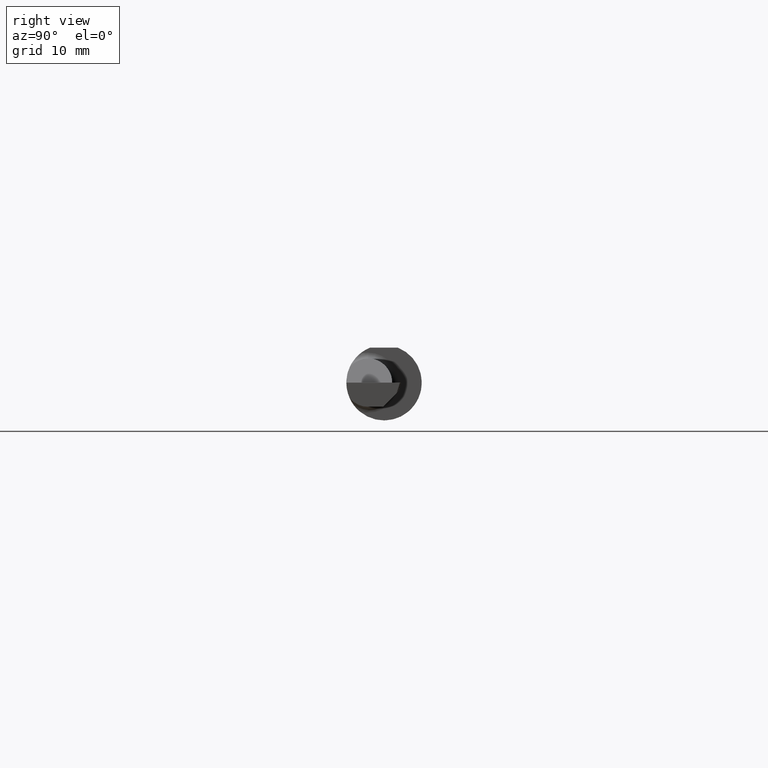
[diagram: clean part render]
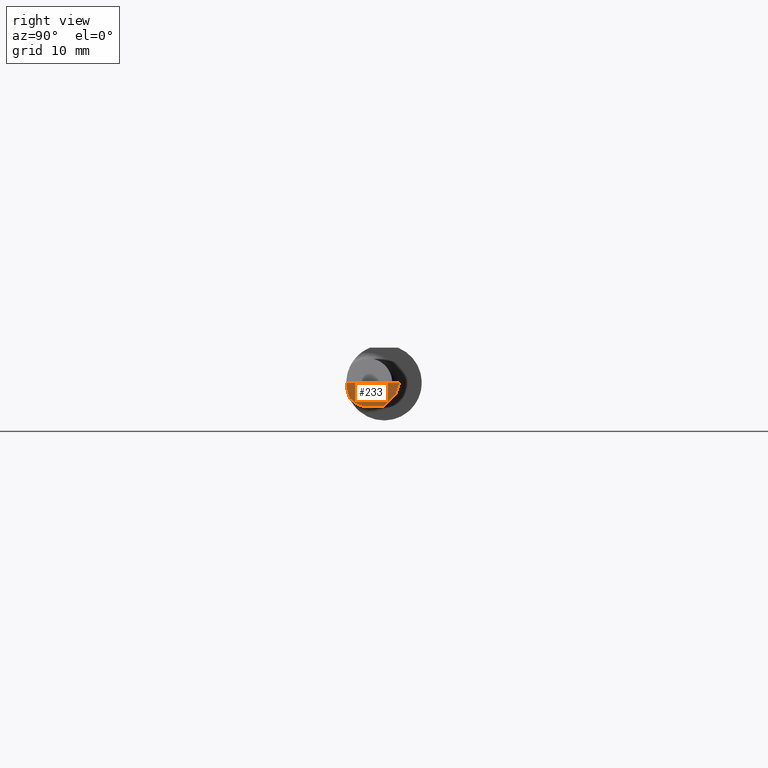
[diagram: same view with one face highlighted and labeled with its STEP entity id]
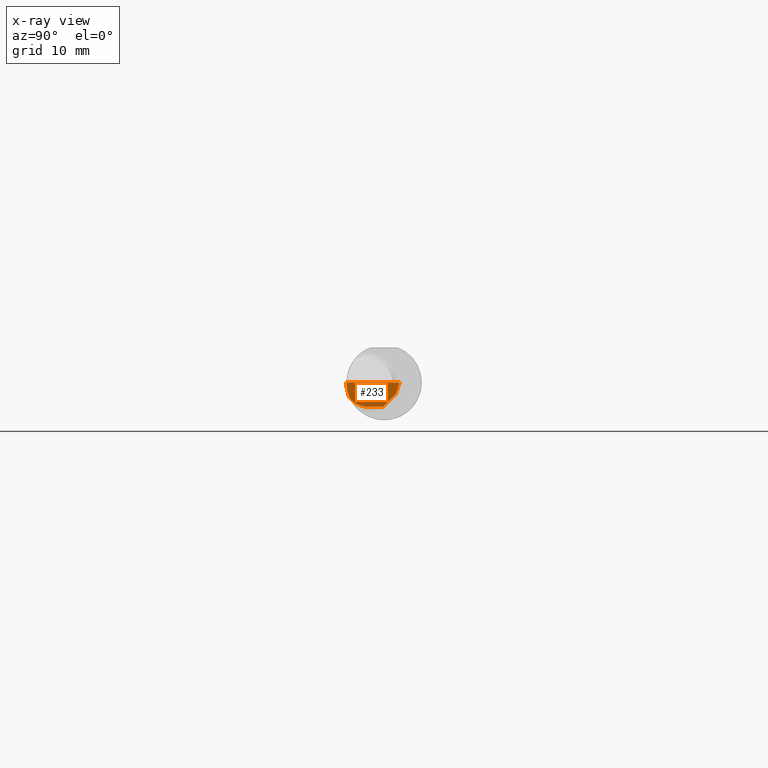
[diagram: x-ray of the same camera — body ghosted, the highlighted face saturated]
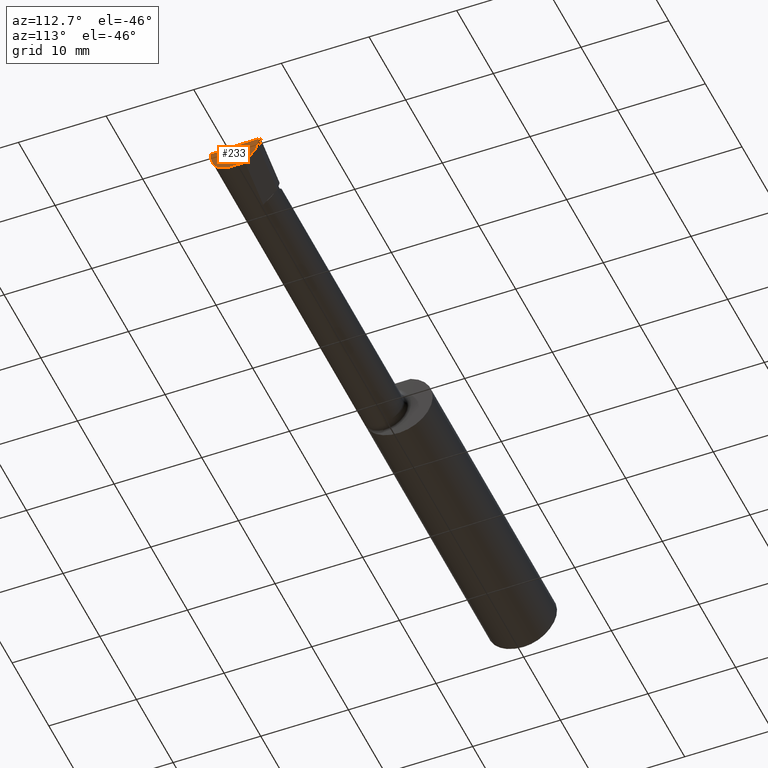
[diagram: same view with one face highlighted and labeled with its STEP entity id]
A machine part, right view. The second image highlights one B-rep face of the part: STEP entity #233.
The next image is the same camera in x-ray: the body ghosted, the highlighted face saturated — about 0% of this face is hidden behind the body in this view.
A second angle (auxiliary view) of the same face is appended — the face is thin or edge-on in the first view.
In plain terms, the highlighted planar face has unit normal (-0.9922, 0.026, 0.1219).
Its self-contained STEP definition (entity closure, byte-faithful):
#8 = EDGE_CURVE ( 'NONE', #596, #362, #585, .T. ) ;
#92 = ORIENTED_EDGE ( 'NONE', *, *, #129, .F. ) ;
#129 = EDGE_CURVE ( 'NONE', #590, #362, #152, .T. ) ;
#131 = VECTOR ( 'NONE', #350, 39.37007874015748854 ) ;
#152 = LINE ( 'NONE', #646, #237 ) ;
#160 = VECTOR ( 'NONE', #294, 39.37007874015748143 ) ;
#188 = CARTESIAN_POINT ( 'NONE',  ( 2.986434241799654554, -0.1419939393939393391, -0.06484544066771595616 ) ) ;
#233 = ADVANCED_FACE ( 'NONE', ( #696 ), #270, .F. ) ;
#237 = VECTOR ( 'NONE', #454, 39.37007874015748854 ) ;
#248 = CARTESIAN_POINT ( 'NONE',  ( 2.994029609882220999, -0.1561000000000000165, -6.741913824051282974E-17 ) ) ;
#255 = CARTESIAN_POINT ( 'NONE',  ( 2.986434241799654554, -0.1419939393939393391, -0.06484544066771595616 ) ) ;
#270 = PLANE ( 'NONE',  #779 ) ;
#273 = CARTESIAN_POINT ( 'NONE',  ( 2.986434241799654554, -0.1419939393939393391, -0.06484544066771595616 ) ) ;
#275 = EDGE_LOOP ( 'NONE', ( #705, #553, #810, #482, #380, #92 ) ) ;
#289 = CARTESIAN_POINT ( 'NONE',  ( 2.995690841152387485, 0.06258158045839887218, -0.03309662379331436421 ) ) ;
#294 = DIRECTION ( 'NONE',  ( 0.1053106618240762932, 0.6976485211320198054, 0.7086580314005344050 ) ) ;
#350 = DIRECTION ( 'NONE',  ( 0.02617694830780385035, 0.9996573249755590362, -3.765352607662575481E-18 ) ) ;
#362 = VERTEX_POINT ( 'NONE', #473 ) ;
#367 = EDGE_CURVE ( 'NONE', #523, #474, #723, .T. ) ;
#370 = CARTESIAN_POINT ( 'NONE',  ( 2.985763474991723232, -0.003183957434558186157, -0.09990000000000000269 ) ) ;
#380 = ORIENTED_EDGE ( 'NONE', *, *, #8, .T. ) ;
#389 = VERTEX_POINT ( 'NONE', #522 ) ;
#391 = LINE ( 'NONE', #289, #160 ) ;
#434 = CARTESIAN_POINT ( 'NONE',  ( 2.991270569402208590, -0.1560999999999999888, -0.02246288137099541199 ) ) ;
#437 = DIRECTION ( 'NONE',  ( -0.9922060308645594962, 0.02598182930462478168, 0.1218693434050671237 ) ) ;
#454 = DIRECTION ( 'NONE',  ( -0.02617694830780384341, -0.9996573249755590362, 0.000000000000000000 ) ) ;
#473 = CARTESIAN_POINT ( 'NONE',  ( 2.984118579027821738, -0.06599999999999998923, -0.09990000000000000269 ) ) ;
#474 = VERTEX_POINT ( 'NONE', #740 ) ;
#482 = ORIENTED_EDGE ( 'NONE', *, *, #557, .F. ) ;
#505 = CARTESIAN_POINT ( 'NONE',  ( 2.988699611492195984, -0.1513252362624134817, -0.04441242967472212866 ) ) ;
#522 = CARTESIAN_POINT ( 'NONE',  ( 2.993754969238144437, 0.04975706530789220094, -0.04612352112763061507 ) ) ;
#523 = VERTEX_POINT ( 'NONE', #248 ) ;
#546 = CARTESIAN_POINT ( 'NONE',  ( 2.984118579027821738, -0.06599999999999998923, -0.09990000000000000269 ) ) ;
#553 = ORIENTED_EDGE ( 'NONE', *, *, #650, .T. ) ;
#557 = EDGE_CURVE ( 'NONE', #596, #523, #802, .T. ) ;
#564 = VECTOR ( 'NONE', #753, 39.37007874015748854 ) ;
#565 = CARTESIAN_POINT ( 'NONE',  ( 3.000086462864355763, 0.06518897437746805357, 0.002134693520080509048 ) ) ;
#572 = CARTESIAN_POINT ( 'NONE',  ( 2.994029609882220999, -0.1561000000000000165, -6.741913824051282974E-17 ) ) ;
#585 =( BOUNDED_CURVE ( )  B_SPLINE_CURVE ( 3, ( #188, #685, #676, #546 ),
 .UNSPECIFIED., .F., .T. ) 
 B_SPLINE_CURVE_WITH_KNOTS ( ( 4, 4 ),
 ( 5.628843761710443871, 6.493234751459348253 ),
 .UNSPECIFIED. ) 
 CURVE ( )  GEOMETRIC_REPRESENTATION_ITEM ( )  RATIONAL_B_SPLINE_CURVE ( ( 1.000000000000000000, 0.9386988813357772798, 0.9386988813357772798, 1.000000000000000000 ) ) 
 REPRESENTATION_ITEM ( '' )  );
#590 = VERTEX_POINT ( 'NONE', #370 ) ;
#595 = CARTESIAN_POINT ( 'NONE',  ( 2.991576527842700450, -0.2497794236187493300, -6.706628126323233036E-17 ) ) ;
#596 = VERTEX_POINT ( 'NONE', #273 ) ;
#637 = CARTESIAN_POINT ( 'NONE',  ( 2.982005098963842027, -0.1170392233017039096, -0.1062257522883768429 ) ) ;
#643 = DIRECTION ( 'NONE',  ( 0.1219104985252022627, 0.000000000000000000, 0.9925410975618774723 ) ) ;
#646 = CARTESIAN_POINT ( 'NONE',  ( 2.984129461495566904, -0.06558441532346324931, -0.09990000000000000269 ) ) ;
#650 = EDGE_CURVE ( 'NONE', #389, #474, #699, .T. ) ;
#676 = CARTESIAN_POINT ( 'NONE',  ( 2.983340380677749870, -0.09571819601686556989, -0.09989999999999998881 ) ) ;
#685 = CARTESIAN_POINT ( 'NONE',  ( 2.984162675884400429, -0.1227037540429563728, -0.08745207517224938554 ) ) ;
#696 = FACE_OUTER_BOUND ( 'NONE', #275, .T. ) ;
#699 = LINE ( 'NONE', #565, #564 ) ;
#705 = ORIENTED_EDGE ( 'NONE', *, *, #721, .T. ) ;
#721 = EDGE_CURVE ( 'NONE', #590, #389, #391, .T. ) ;
#723 = LINE ( 'NONE', #595, #131 ) ;
#740 = CARTESIAN_POINT ( 'NONE',  ( 2.999806390372760756, 0.06450634663141942282, -6.825008366731280479E-17 ) ) ;
#753 = DIRECTION ( 'NONE',  ( 0.1240019227988374689, 0.3022330132596593999, 0.9451342385281455982 ) ) ;
#779 = AXIS2_PLACEMENT_3D ( 'NONE', #637, #437, #643 ) ;
#802 =( BOUNDED_CURVE ( )  B_SPLINE_CURVE ( 3, ( #255, #505, #434, #572 ),
 .UNSPECIFIED., .F., .F. ) 
 B_SPLINE_CURVE_WITH_KNOTS ( ( 4, 4 ),
 ( 0.9323538202067674918, 1.360746882515132761 ),
 .UNSPECIFIED. ) 
 CURVE ( )  GEOMETRIC_REPRESENTATION_ITEM ( )  RATIONAL_B_SPLINE_CURVE ( ( 1.000000000000000000, 0.9847649979006014576, 0.9847649979006014576, 1.000000000000000000 ) ) 
 REPRESENTATION_ITEM ( '' )  );
#810 = ORIENTED_EDGE ( 'NONE', *, *, #367, .F. ) ;